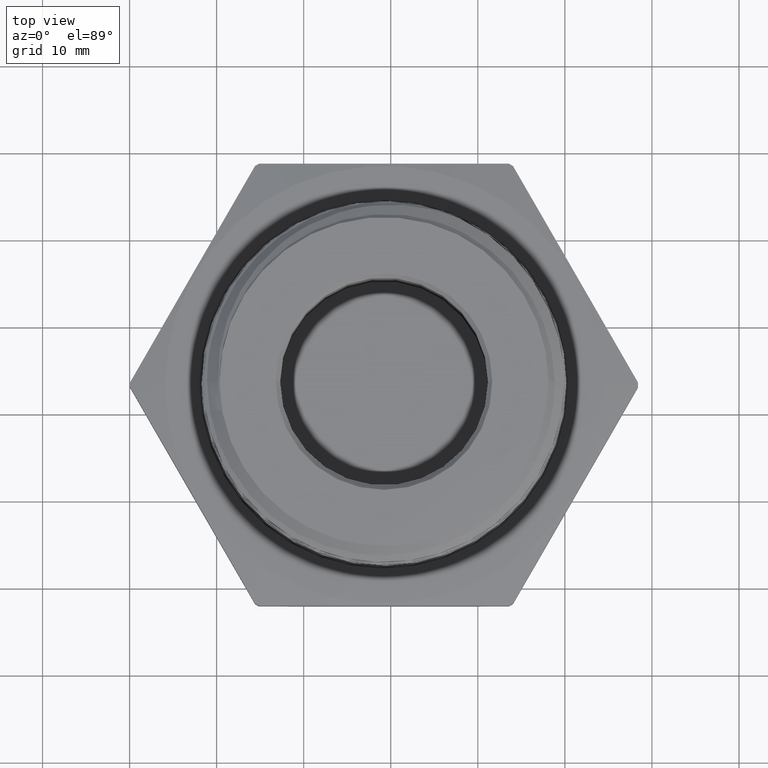
[diagram: clean part render]
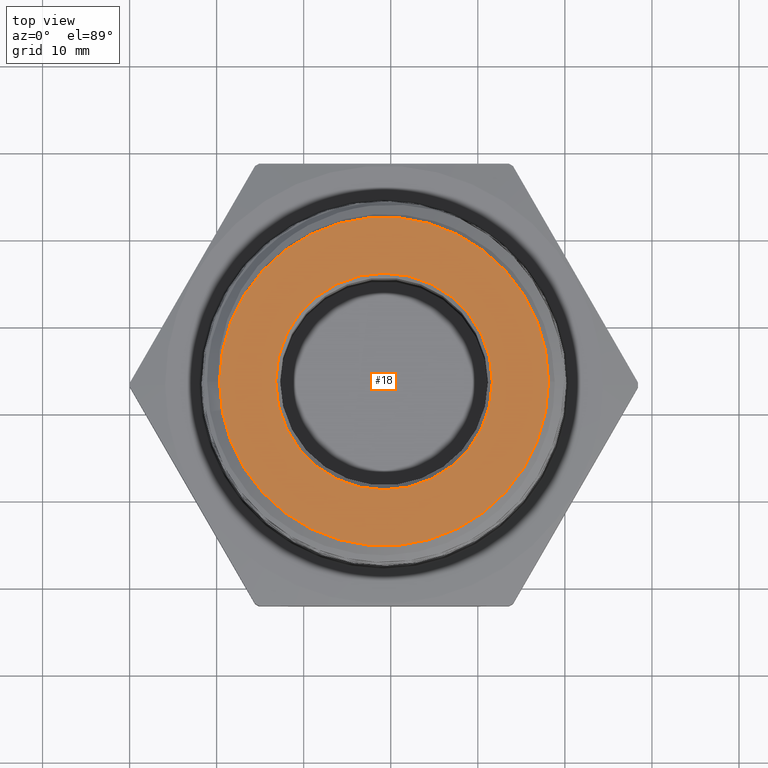
[diagram: same view with one face highlighted and labeled with its STEP entity id]
A machine part, top view. The second image highlights one B-rep face of the part: STEP entity #18.
In plain terms, the highlighted planar face has unit normal (0, 0, 1).
Its self-contained STEP definition (entity closure, byte-faithful):
#18 = ADVANCED_FACE ( 'NONE', ( #7359, #7396 ), #80, .T. ) ;
#76 = DIRECTION ( 'NONE',  ( 0.0000000000000000000, 0.0000000000000000000, 1.000000000000000000 ) ) ;
#78 = CARTESIAN_POINT ( 'NONE',  ( 0.0000000000000000000, 0.0000000000000000000, 1.050000000000000000 ) ) ;
#80 = PLANE ( 'NONE',  #196 ) ;
#82 = DIRECTION ( 'NONE',  ( 1.000000000000000000, 0.0000000000000000000, -0.0000000000000000000 ) ) ;
#196 = AXIS2_PLACEMENT_3D ( 'NONE', #78, #76, #82 ) ;
#223 = AXIS2_PLACEMENT_3D ( 'NONE', #5761, #5762, #5763 ) ;
#224 = AXIS2_PLACEMENT_3D ( 'NONE', #5822, #5823, #5824 ) ;
#227 = AXIS2_PLACEMENT_3D ( 'NONE', #6121, #6122, #6123 ) ;
#244 = AXIS2_PLACEMENT_3D ( 'NONE', #7268, #7269, #7270 ) ;
#807 = CARTESIAN_POINT ( 'NONE',  ( 0.4899999999999998800, 0.0000000000000000000, 1.050000000000000000 ) ) ;
#861 = CARTESIAN_POINT ( 'NONE',  ( 0.7437499999999945800, 9.455255948274442000E-017, 1.050000000000000000 ) ) ;
#868 = CARTESIAN_POINT ( 'NONE',  ( -0.7437499999999945800, 0.0000000000000000000, 1.050000000000000000 ) ) ;
#4678 = EDGE_CURVE ( 'NONE', #7327, #7319, #7472, .T. ) ;
#4683 = EDGE_CURVE ( 'NONE', #7319, #7327, #7474, .T. ) ;
#4692 = EDGE_CURVE ( 'NONE', #4989, #4990, #7482, .T. ) ;
#4910 = EDGE_CURVE ( 'NONE', #4990, #4989, #7573, .T. ) ;
#4989 = VERTEX_POINT ( 'NONE', #807 ) ;
#4990 = VERTEX_POINT ( 'NONE', #7292 ) ;
#5030 = ORIENTED_EDGE ( 'NONE', *, *, #4678, .F. ) ;
#5031 = ORIENTED_EDGE ( 'NONE', *, *, #4683, .F. ) ;
#5032 = ORIENTED_EDGE ( 'NONE', *, *, #4692, .F. ) ;
#5033 = ORIENTED_EDGE ( 'NONE', *, *, #4910, .F. ) ;
#5106 = EDGE_LOOP ( 'NONE', ( #5032, #5033 ) ) ;
#5115 = EDGE_LOOP ( 'NONE', ( #5030, #5031 ) ) ;
#5761 = CARTESIAN_POINT ( 'NONE',  ( 0.0000000000000000000, 0.0000000000000000000, 1.050000000000000000 ) ) ;
#5762 = DIRECTION ( 'NONE',  ( -0.0000000000000000000, -0.0000000000000000000, -1.000000000000000000 ) ) ;
#5763 = DIRECTION ( 'NONE',  ( -1.000000000000000000, 0.0000000000000000000, 0.0000000000000000000 ) ) ;
#5822 = CARTESIAN_POINT ( 'NONE',  ( 0.0000000000000000000, 0.0000000000000000000, 1.050000000000000000 ) ) ;
#5823 = DIRECTION ( 'NONE',  ( -0.0000000000000000000, -0.0000000000000000000, -1.000000000000000000 ) ) ;
#5824 = DIRECTION ( 'NONE',  ( -1.000000000000000000, 0.0000000000000000000, 0.0000000000000000000 ) ) ;
#6121 = CARTESIAN_POINT ( 'NONE',  ( 2.931992207653878500E-017, 0.0000000000000000000, 1.050000000000000000 ) ) ;
#6122 = DIRECTION ( 'NONE',  ( 2.082994455677839100E-017, -0.0000000000000000000, 1.000000000000000000 ) ) ;
#6123 = DIRECTION ( 'NONE',  ( 1.000000000000000000, 0.0000000000000000000, 0.0000000000000000000 ) ) ;
#7268 = CARTESIAN_POINT ( 'NONE',  ( 2.931992207653878500E-017, 0.0000000000000000000, 1.050000000000000000 ) ) ;
#7269 = DIRECTION ( 'NONE',  ( 2.082994455677839100E-017, -0.0000000000000000000, 1.000000000000000000 ) ) ;
#7270 = DIRECTION ( 'NONE',  ( 1.000000000000000000, 0.0000000000000000000, 0.0000000000000000000 ) ) ;
#7292 = CARTESIAN_POINT ( 'NONE',  ( -0.4899999999999998800, 6.000769315822029800E-017, 1.050000000000000000 ) ) ;
#7319 = VERTEX_POINT ( 'NONE', #861 ) ;
#7327 = VERTEX_POINT ( 'NONE', #868 ) ;
#7359 = FACE_OUTER_BOUND ( 'NONE', #5115, .T. ) ;
#7396 = FACE_BOUND ( 'NONE', #5106, .T. ) ;
#7472 = CIRCLE ( 'NONE', #223, 0.7437499999999945800 ) ;
#7474 = CIRCLE ( 'NONE', #224, 0.7437499999999945800 ) ;
#7482 = CIRCLE ( 'NONE', #227, 0.4899999999999998800 ) ;
#7573 = CIRCLE ( 'NONE', #244, 0.4899999999999998800 ) ;